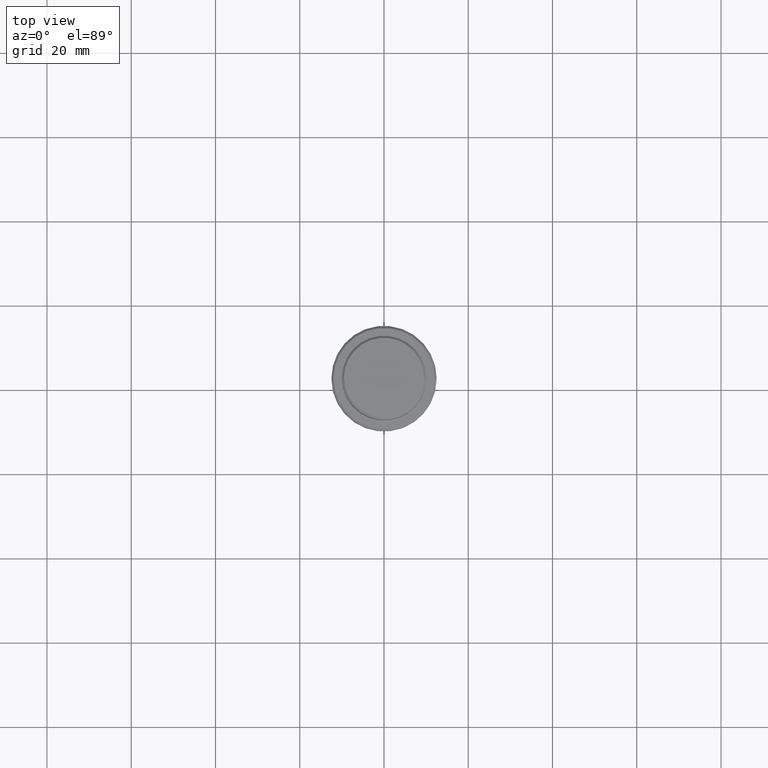
[diagram: clean part render]
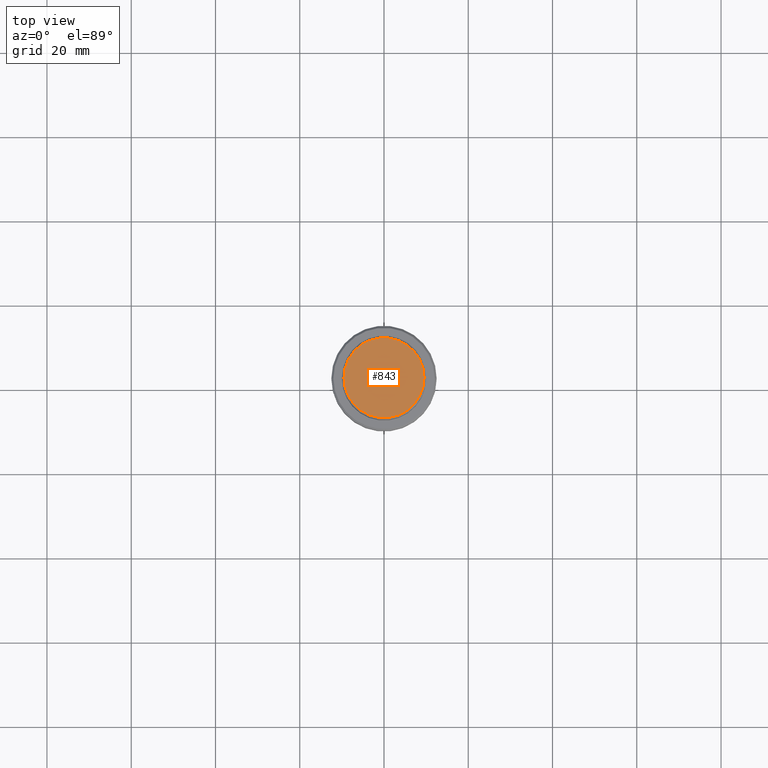
[diagram: same view with one face highlighted and labeled with its STEP entity id]
A machine part, top view. The second image highlights one B-rep face of the part: STEP entity #843.
In plain terms, the highlighted planar face has unit normal (0, -0, 1).
Its self-contained STEP definition (entity closure, byte-faithful):
#16 = DIRECTION ( 'NONE',  ( 1.000000000000000000, 0.000000000000000000, 0.000000000000000000 ) ) ;
#93 = CARTESIAN_POINT ( 'NONE',  ( 0.000000000000000000, 0.000000000000000000, 0.000000000000000000 ) ) ;
#197 = DIRECTION ( 'NONE',  ( 1.000000000000000000, 0.000000000000000000, 0.000000000000000000 ) ) ;
#357 = AXIS2_PLACEMENT_3D ( 'NONE', #1078, #436, #539 ) ;
#436 = DIRECTION ( 'NONE',  ( -0.000000000000000000, -0.000000000000000000, 1.000000000000000000 ) ) ;
#453 = EDGE_CURVE ( 'NONE', #792, #502, #940, .T. ) ;
#474 = EDGE_LOOP ( 'NONE', ( #935, #1003 ) ) ;
#502 = VERTEX_POINT ( 'NONE', #524 ) ;
#524 = CARTESIAN_POINT ( 'NONE',  ( 9.500000000000035527, 1.194030629168671442E-15, 0.000000000000000000 ) ) ;
#532 = PLANE ( 'NONE',  #579 ) ;
#539 = DIRECTION ( 'NONE',  ( 1.000000000000000000, 0.000000000000000000, 0.000000000000000000 ) ) ;
#579 = AXIS2_PLACEMENT_3D ( 'NONE', #749, #991, #197 ) ;
#749 = CARTESIAN_POINT ( 'NONE',  ( 0.000000000000000000, 0.000000000000000000, 0.000000000000000000 ) ) ;
#792 = VERTEX_POINT ( 'NONE', #1039 ) ;
#843 = ADVANCED_FACE ( 'NONE', ( #1188 ), #532, .T. ) ;
#908 = EDGE_CURVE ( 'NONE', #502, #792, #1333, .T. ) ;
#935 = ORIENTED_EDGE ( 'NONE', *, *, #453, .T. ) ;
#940 = CIRCLE ( 'NONE', #1357, 9.500000000000035527 ) ;
#991 = DIRECTION ( 'NONE',  ( 0.000000000000000000, -0.000000000000000000, 1.000000000000000000 ) ) ;
#992 = DIRECTION ( 'NONE',  ( -0.000000000000000000, -0.000000000000000000, 1.000000000000000000 ) ) ;
#1003 = ORIENTED_EDGE ( 'NONE', *, *, #908, .T. ) ;
#1039 = CARTESIAN_POINT ( 'NONE',  ( -9.500000000000035527, 0.000000000000000000, 0.000000000000000000 ) ) ;
#1078 = CARTESIAN_POINT ( 'NONE',  ( 0.000000000000000000, 0.000000000000000000, 0.000000000000000000 ) ) ;
#1188 = FACE_OUTER_BOUND ( 'NONE', #474, .T. ) ;
#1333 = CIRCLE ( 'NONE', #357, 9.500000000000035527 ) ;
#1357 = AXIS2_PLACEMENT_3D ( 'NONE', #93, #992, #16 ) ;